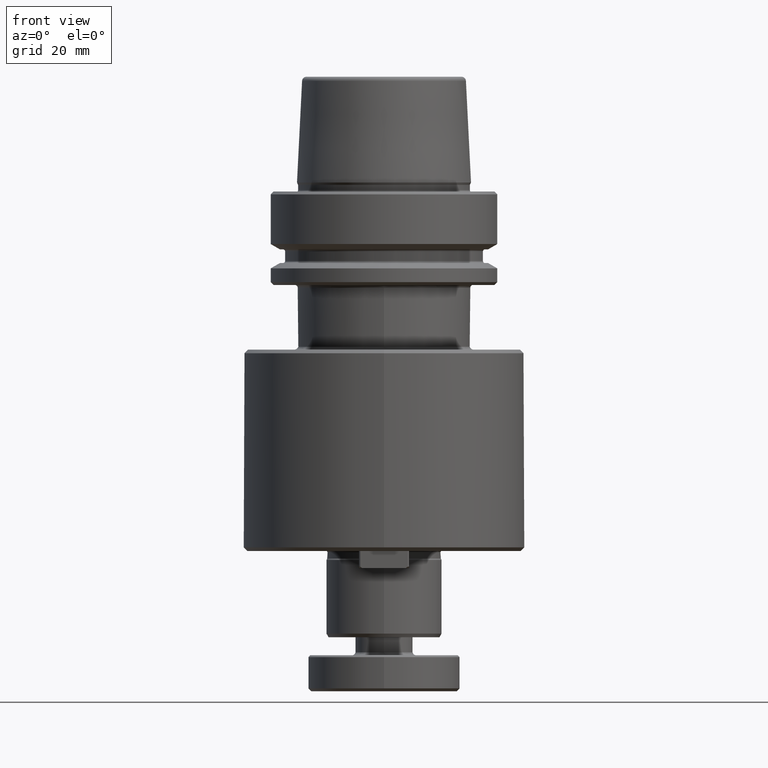
[diagram: clean part render]
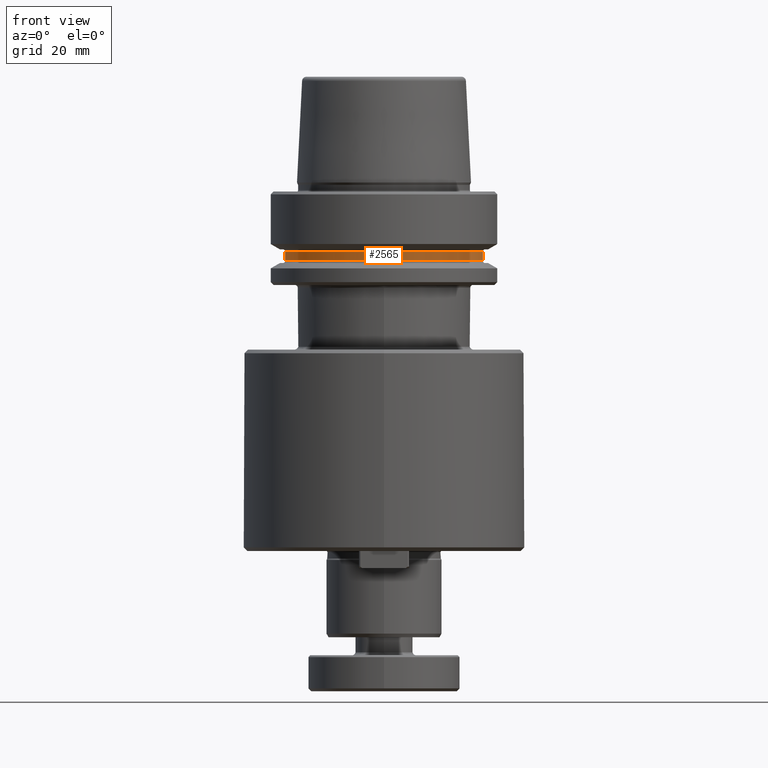
[diagram: same view with one face highlighted and labeled with its STEP entity id]
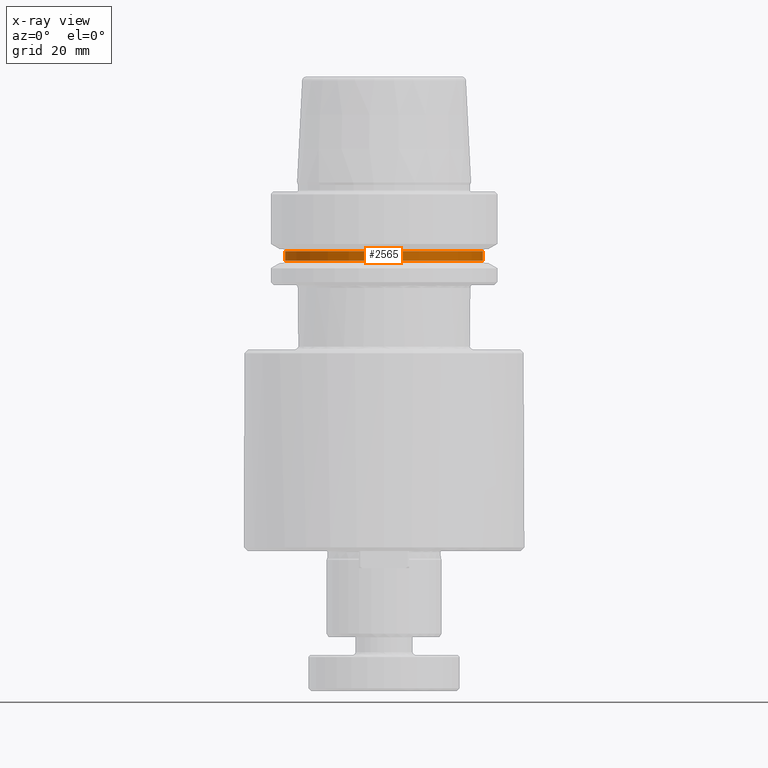
[diagram: x-ray of the same camera — body ghosted, the highlighted face saturated]
A machine part, front view. The second image highlights one B-rep face of the part: STEP entity #2565.
The next image is the same camera in x-ray: the body ghosted, the highlighted face saturated — about 0% of this face is hidden behind the body in this view.
In plain terms, the highlighted cylindrical surface (partial cylindrical patch) has radius 27.5 mm, axis along (-0, -0, 1).
Its self-contained STEP definition (entity closure, byte-faithful):
#15 = EDGE_LOOP ( 'NONE', ( #691, #1306, #231, #2481 ) ) ;
#59 = EDGE_CURVE ( 'NONE', #520, #2192, #2523, .T. ) ;
#231 = ORIENTED_EDGE ( 'NONE', *, *, #3333, .T. ) ;
#481 = CARTESIAN_POINT ( 'NONE',  ( 0.0000000000000000000, 0.0000000000000000000, -19.32346800859834000 ) ) ;
#520 = VERTEX_POINT ( 'NONE', #1708 ) ;
#667 = EDGE_CURVE ( 'NONE', #1965, #520, #2503, .T. ) ;
#691 = ORIENTED_EDGE ( 'NONE', *, *, #667, .F. ) ;
#749 = CARTESIAN_POINT ( 'NONE',  ( -27.50000000000170200, 3.367778697655429600E-015, 63.09057211336759300 ) ) ;
#755 = AXIS2_PLACEMENT_3D ( 'NONE', #3116, #1536, #3371 ) ;
#756 = DIRECTION ( 'NONE',  ( 1.000000000000000000, 0.0000000000000000000, 0.0000000000000000000 ) ) ;
#817 = CARTESIAN_POINT ( 'NONE',  ( 27.50000000000170200, 0.0000000000000000000, 63.09057211336759300 ) ) ;
#1012 = AXIS2_PLACEMENT_3D ( 'NONE', #2629, #2894, #2362 ) ;
#1078 = VECTOR ( 'NONE', #2085, 1000.000000000000000 ) ;
#1261 = EDGE_CURVE ( 'NONE', #1965, #3168, #3066, .T. ) ;
#1306 = ORIENTED_EDGE ( 'NONE', *, *, #1261, .T. ) ;
#1536 = DIRECTION ( 'NONE',  ( -0.0000000000000000000, -0.0000000000000000000, 1.000000000000000000 ) ) ;
#1708 = CARTESIAN_POINT ( 'NONE',  ( -27.50000000000170200, 3.367778697655429600E-015, -16.72346800859862600 ) ) ;
#1804 = CARTESIAN_POINT ( 'NONE',  ( 27.50000000000170200, 0.0000000000000000000, -19.32346800859834000 ) ) ;
#1855 = FACE_OUTER_BOUND ( 'NONE', #15, .T. ) ;
#1965 = VERTEX_POINT ( 'NONE', #3212 ) ;
#2085 = DIRECTION ( 'NONE',  ( -0.0000000000000000000, -0.0000000000000000000, 1.000000000000000000 ) ) ;
#2192 = VERTEX_POINT ( 'NONE', #2840 ) ;
#2224 = LINE ( 'NONE', #817, #2916 ) ;
#2360 = DIRECTION ( 'NONE',  ( -0.0000000000000000000, -0.0000000000000000000, 1.000000000000000000 ) ) ;
#2362 = DIRECTION ( 'NONE',  ( 1.000000000000000000, 0.0000000000000000000, 0.0000000000000000000 ) ) ;
#2422 = DIRECTION ( 'NONE',  ( -0.0000000000000000000, -0.0000000000000000000, 1.000000000000000000 ) ) ;
#2481 = ORIENTED_EDGE ( 'NONE', *, *, #59, .F. ) ;
#2503 = LINE ( 'NONE', #749, #1078 ) ;
#2523 = CIRCLE ( 'NONE', #755, 27.50000000000170200 ) ;
#2565 = ADVANCED_FACE ( 'NONE', ( #1855 ), #3156, .T. ) ;
#2629 = CARTESIAN_POINT ( 'NONE',  ( 0.0000000000000000000, 0.0000000000000000000, 63.09057211336759300 ) ) ;
#2840 = CARTESIAN_POINT ( 'NONE',  ( 27.50000000000170200, 0.0000000000000000000, -16.72346800859862600 ) ) ;
#2894 = DIRECTION ( 'NONE',  ( -0.0000000000000000000, -0.0000000000000000000, 1.000000000000000000 ) ) ;
#2916 = VECTOR ( 'NONE', #2422, 1000.000000000000000 ) ;
#3038 = AXIS2_PLACEMENT_3D ( 'NONE', #481, #2360, #756 ) ;
#3066 = CIRCLE ( 'NONE', #3038, 27.50000000000170200 ) ;
#3116 = CARTESIAN_POINT ( 'NONE',  ( 0.0000000000000000000, 0.0000000000000000000, -16.72346800859862600 ) ) ;
#3156 = CYLINDRICAL_SURFACE ( 'NONE', #1012, 27.50000000000170200 ) ;
#3168 = VERTEX_POINT ( 'NONE', #1804 ) ;
#3212 = CARTESIAN_POINT ( 'NONE',  ( -27.50000000000170200, 3.404518101629846100E-015, -19.32346800859834000 ) ) ;
#3333 = EDGE_CURVE ( 'NONE', #3168, #2192, #2224, .T. ) ;
#3371 = DIRECTION ( 'NONE',  ( 1.000000000000000000, 0.0000000000000000000, 0.0000000000000000000 ) ) ;